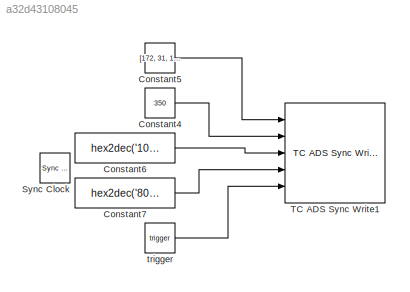
MODEL slx_a32d43108045
KIND model
CONFIG AbsTol = auto
CONFIG EnableMultiTasking = off
CONFIG FixedStep = auto
CONFIG MaxStep = auto
CONFIG MinStep = auto
CONFIG RelTol = 1e-3
CONFIG SampleTimeConstraint = Unconstrained
CONFIG Solver = VariableStepAuto
CONFIG SolverName = VariableStepAuto
CONFIG StartTime = 0.0
CONFIG StopTime = 0.001
BLOCK [Constant] Constant4
  OutDataTypeStr = uint16
  Value = 350
BLOCK [Constant] Constant5
  OutDataTypeStr = uint8
  Value = [172, 31, 1, 150, 1, 1]
BLOCK [Constant] Constant6
  OutDataTypeStr = uint32
  Value = hex2dec('1010010')
BLOCK [Constant] Constant7
  OutDataTypeStr = uint32
  Value = hex2dec('80000109')
BLOCK [Reference] Sync Clock  REF=TcAdsLib/Utilities/Sync Clock
  Ports = []
  SourceBlock = TcAdsLib/Utilities/Sync Clock
  SourceProductName = Beckhoff TwinCAT ADS Interface
BLOCK [Reference] TC ADS Sync Write1  REF=TcAdsLib/Synchronous/TC ADS Sync Write
  Ports = [5, 2]
  SourceBlock = TcAdsLib/Synchronous/TC ADS Sync Write
  SourceProductName = Beckhoff TwinCAT ADS Interface
  SourceType = TC ADS Sync Write
BLOCK [Constant] trigger
  OutDataTypeStr = boolean
  Value = trigger
LINE Constant4:1 -> TC ADS Sync Write1:2
LINE Constant5:1 -> TC ADS Sync Write1:1
LINE Constant6:1 -> TC ADS Sync Write1:3
LINE Constant7:1 -> TC ADS Sync Write1:4
LINE trigger:1 -> TC ADS Sync Write1:5
